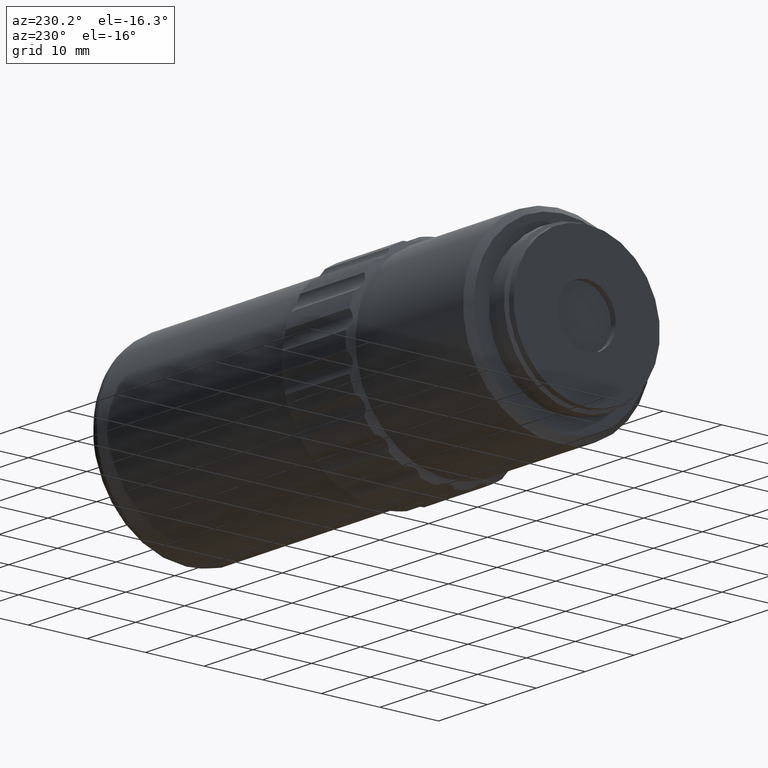
[diagram: clean part render]
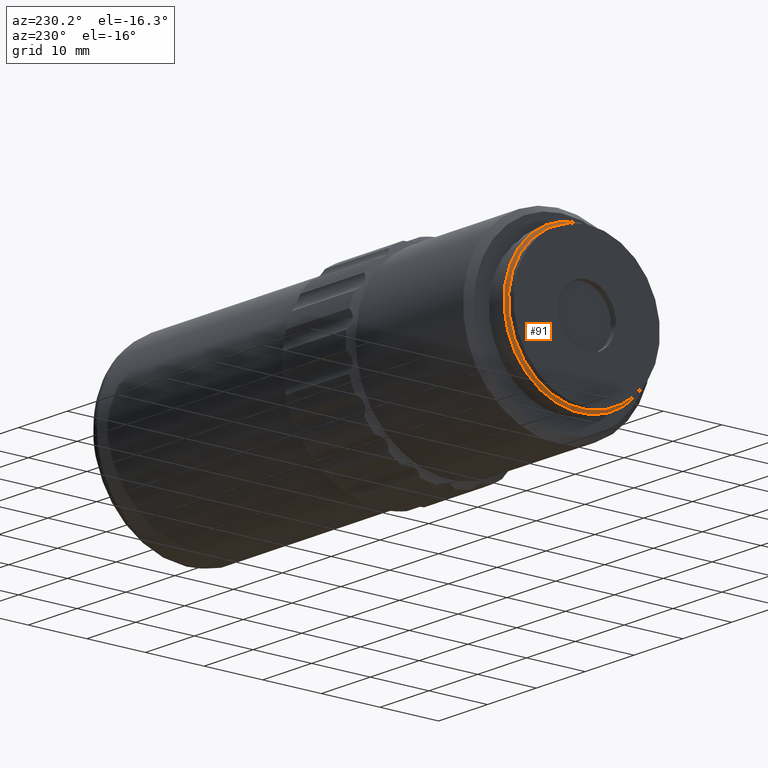
[diagram: same view with one face highlighted and labeled with its STEP entity id]
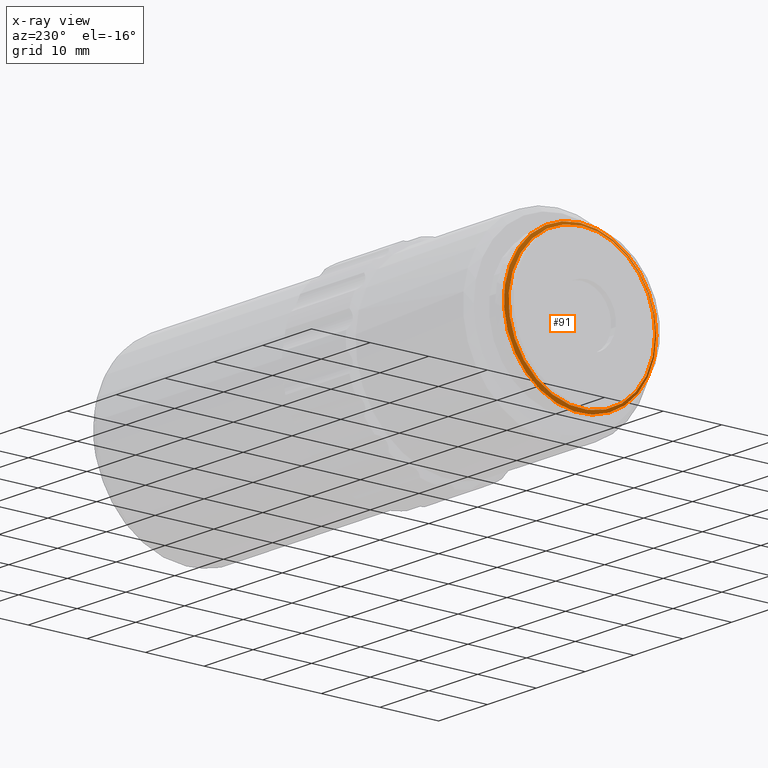
[diagram: x-ray of the same camera — body ghosted, the highlighted face saturated]
A machine part, auxiliary view. The second image highlights one B-rep face of the part: STEP entity #91.
The next image is the same camera in x-ray: the body ghosted, the highlighted face saturated — about 0% of this face is hidden behind the body in this view.
In plain terms, the highlighted conical surface has half-angle 55 deg.
Its self-contained STEP definition (entity closure, byte-faithful):
#16 = CARTESIAN_POINT ( 'NONE',  ( -8.203038196016342098, 46.02096199999999726, 0.000000000000000000 ) ) ;
#81 = DIRECTION ( 'NONE',  ( 0.000000000000000000, -1.000000000000000000, 0.000000000000000000 ) ) ;
#91 = ADVANCED_FACE ( 'NONE', ( #2104, #1481 ), #2593, .T. ) ;
#108 = CARTESIAN_POINT ( 'NONE',  ( -8.203038196016347428, 46.02096199999999726, 0.000000000000000000 ) ) ;
#176 = DIRECTION ( 'NONE',  ( 0.000000000000000000, 0.000000000000000000, 1.000000000000000000 ) ) ;
#315 = AXIS2_PLACEMENT_3D ( 'NONE', #2780, #1179, #81 ) ;
#329 = ORIENTED_EDGE ( 'NONE', *, *, #1184, .F. ) ;
#408 = VERTEX_POINT ( 'NONE', #1336 ) ;
#445 = EDGE_CURVE ( 'NONE', #408, #408, #1558, .T. ) ;
#569 = EDGE_LOOP ( 'NONE', ( #729 ) ) ;
#574 = AXIS2_PLACEMENT_3D ( 'NONE', #108, #1754, #1247 ) ;
#656 = AXIS2_PLACEMENT_3D ( 'NONE', #16, #1791, #176 ) ;
#729 = ORIENTED_EDGE ( 'NONE', *, *, #445, .T. ) ;
#1179 = DIRECTION ( 'NONE',  ( 1.000000000000000000, 0.000000000000000000, 0.000000000000000000 ) ) ;
#1184 = EDGE_CURVE ( 'NONE', #1294, #1294, #1212, .T. ) ;
#1197 = EDGE_LOOP ( 'NONE', ( #329 ) ) ;
#1212 = CIRCLE ( 'NONE', #656, 13.00000000000000178 ) ;
#1247 = DIRECTION ( 'NONE',  ( 0.000000000000000000, 0.000000000000000000, -1.000000000000000000 ) ) ;
#1294 = VERTEX_POINT ( 'NONE', #2224 ) ;
#1336 = CARTESIAN_POINT ( 'NONE',  ( -8.553141965121202617, 33.52096200000000437, 0.000000000000000000 ) ) ;
#1481 = FACE_OUTER_BOUND ( 'NONE', #1197, .T. ) ;
#1558 = CIRCLE ( 'NONE', #315, 12.49999999999999645 ) ;
#1754 = DIRECTION ( 'NONE',  ( 1.000000000000000000, -0.000000000000000000, 0.000000000000000000 ) ) ;
#1791 = DIRECTION ( 'NONE',  ( 1.000000000000000000, -0.000000000000000000, -0.000000000000000000 ) ) ;
#2104 = FACE_BOUND ( 'NONE', #569, .T. ) ;
#2224 = CARTESIAN_POINT ( 'NONE',  ( -8.203038196016342098, 46.02096199999999726, 13.00000000000000178 ) ) ;
#2593 = CONICAL_SURFACE ( 'NONE', #574, 12.99999999999999822, 0.9599310885968810325 ) ;
#2780 = CARTESIAN_POINT ( 'NONE',  ( -8.553141965121202617, 46.02096199999999726, 0.000000000000000000 ) ) ;